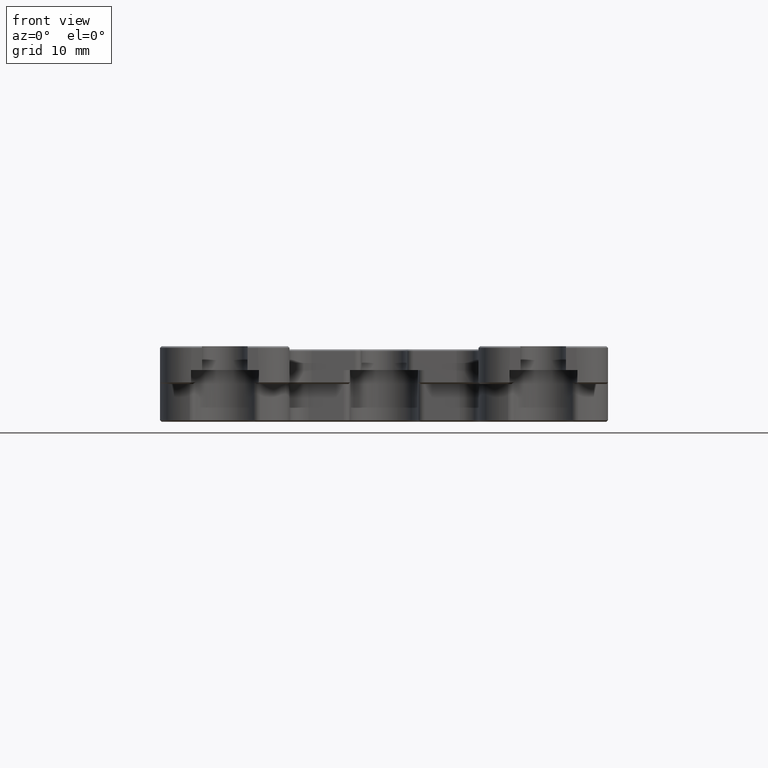
[diagram: clean part render]
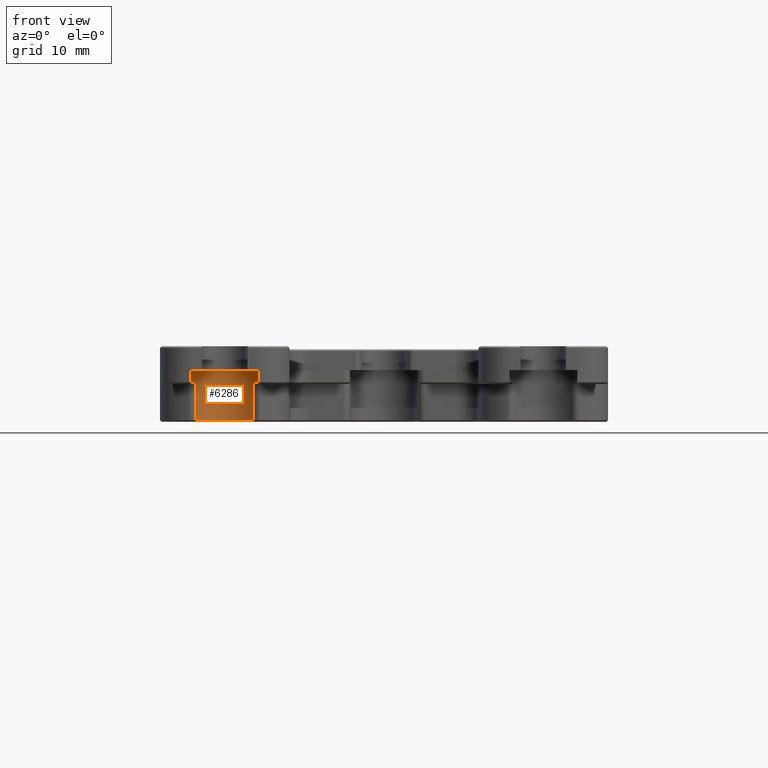
[diagram: same view with one face highlighted and labeled with its STEP entity id]
A machine part, front view. The second image highlights one B-rep face of the part: STEP entity #6286.
In plain terms, the highlighted cylindrical surface (edge-blend (fillet) strip) has radius 5.4 mm, axis along (-0, -0, -1).
Its self-contained STEP definition (entity closure, byte-faithful):
#534 = DIRECTION ( 'NONE',  ( -1.000000000000000000, 0.000000000000000000, 6.023345402697244253E-17 ) ) ;
#814 = VECTOR ( 'NONE', #22835, 1000.000000000000000 ) ;
#1021 = EDGE_CURVE ( 'NONE', #20765, #19115, #10416, .T. ) ;
#1199 = ORIENTED_EDGE ( 'NONE', *, *, #17718, .T. ) ;
#1258 = DIRECTION ( 'NONE',  ( -5.551115123125782702E-17, -1.224646799147352468E-16, -1.000000000000000000 ) ) ;
#1653 = EDGE_CURVE ( 'NONE', #2210, #13664, #15200, .T. ) ;
#1727 = DIRECTION ( 'NONE',  ( -5.551115123125782702E-17, -1.224646799147352468E-16, -1.000000000000000000 ) ) ;
#2127 = DIRECTION ( 'NONE',  ( -1.000000000000000000, 0.000000000000000000, 6.023345402697244253E-17 ) ) ;
#2210 = VERTEX_POINT ( 'NONE', #8356 ) ;
#2847 = ORIENTED_EDGE ( 'NONE', *, *, #1021, .T. ) ;
#3687 = CARTESIAN_POINT ( 'NONE',  ( -19.87500000000000000, -37.91000000000000369, 27.32679300785750698 ) ) ;
#3746 = CIRCLE ( 'NONE', #9104, 5.400000000000002132 ) ;
#4502 = FACE_OUTER_BOUND ( 'NONE', #28114, .T. ) ;
#4848 = CARTESIAN_POINT ( 'NONE',  ( -25.27500000000000568, -37.91000000000001080, 27.32679300785750698 ) ) ;
#5140 = DIRECTION ( 'NONE',  ( -1.000000000000000000, 0.000000000000000000, 0.000000000000000000 ) ) ;
#5851 = ORIENTED_EDGE ( 'NONE', *, *, #29060, .F. ) ;
#6286 = ADVANCED_FACE ( 'NONE', ( #4502 ), #26510, .F. ) ;
#6570 = DIRECTION ( 'NONE',  ( -5.551115123125782702E-17, -1.224646799147352468E-16, -1.000000000000000000 ) ) ;
#6685 = LINE ( 'NONE', #6789, #814 ) ;
#6789 = CARTESIAN_POINT ( 'NONE',  ( -20.70667780439379868, -35.03068891622810810, 27.32679300785750698 ) ) ;
#6860 = AXIS2_PLACEMENT_3D ( 'NONE', #7521, #9778, #25463 ) ;
#7521 = CARTESIAN_POINT ( 'NONE',  ( -25.27500000000000568, -37.91000000000001080, -5.749999999999999112 ) ) ;
#8356 = CARTESIAN_POINT ( 'NONE',  ( -20.70667780439379868, -35.03068891622810810, 0.2500000000000334177 ) ) ;
#9104 = AXIS2_PLACEMENT_3D ( 'NONE', #18233, #6570, #2127 ) ;
#9345 = CIRCLE ( 'NONE', #10223, 5.400000000000002132 ) ;
#9505 = VECTOR ( 'NONE', #11806, 1000.000000000000000 ) ;
#9673 = CARTESIAN_POINT ( 'NONE',  ( -19.87500000000000000, -37.91000000000000369, 0.2500000000000337508 ) ) ;
#9778 = DIRECTION ( 'NONE',  ( -5.551115123125782702E-17, -1.224646799147352468E-16, -1.000000000000000000 ) ) ;
#10223 = AXIS2_PLACEMENT_3D ( 'NONE', #14273, #20952, #14188 ) ;
#10416 = CIRCLE ( 'NONE', #6860, 5.400000000000002132 ) ;
#10455 = LINE ( 'NONE', #28134, #21369 ) ;
#11806 = DIRECTION ( 'NONE',  ( -5.551115123125782702E-17, -1.224646799147352468E-16, -1.000000000000000000 ) ) ;
#13054 = EDGE_CURVE ( 'NONE', #16482, #21386, #9345, .T. ) ;
#13613 = ORIENTED_EDGE ( 'NONE', *, *, #26202, .T. ) ;
#13664 = VERTEX_POINT ( 'NONE', #9673 ) ;
#14188 = DIRECTION ( 'NONE',  ( -1.000000000000000000, -1.284980352575412107E-15, 8.031127203596325671E-17 ) ) ;
#14273 = CARTESIAN_POINT ( 'NONE',  ( -25.27500000000000568, -37.91000000000001080, 2.200000000000006839 ) ) ;
#15172 = ORIENTED_EDGE ( 'NONE', *, *, #25343, .T. ) ;
#15200 = CIRCLE ( 'NONE', #22961, 5.400000000000002132 ) ;
#15460 = VERTEX_POINT ( 'NONE', #18542 ) ;
#16482 = VERTEX_POINT ( 'NONE', #21775 ) ;
#16540 = LINE ( 'NONE', #3687, #21071 ) ;
#17035 = VERTEX_POINT ( 'NONE', #28172 ) ;
#17718 = EDGE_CURVE ( 'NONE', #15460, #17035, #3746, .T. ) ;
#18233 = CARTESIAN_POINT ( 'NONE',  ( -25.27500000000000568, -37.91000000000001080, 0.2500000000000062728 ) ) ;
#18362 = LINE ( 'NONE', #18481, #9505 ) ;
#18481 = CARTESIAN_POINT ( 'NONE',  ( -29.84332219560620914, -35.03068891622810810, 27.32679300785750698 ) ) ;
#18542 = CARTESIAN_POINT ( 'NONE',  ( -30.67500000000000782, -37.91000000000000369, 0.2500000000000065503 ) ) ;
#18974 = EDGE_CURVE ( 'NONE', #19115, #2210, #6685, .T. ) ;
#19115 = VERTEX_POINT ( 'NONE', #25412 ) ;
#20433 = CARTESIAN_POINT ( 'NONE',  ( -25.27500000000000568, -37.91000000000001080, 0.2500000000000340283 ) ) ;
#20582 = DIRECTION ( 'NONE',  ( -5.551115123125782702E-17, -1.224646799147352468E-16, -1.000000000000000000 ) ) ;
#20765 = VERTEX_POINT ( 'NONE', #27015 ) ;
#20952 = DIRECTION ( 'NONE',  ( 5.551115123125782702E-17, 1.224646799147352468E-16, 1.000000000000000000 ) ) ;
#21071 = VECTOR ( 'NONE', #1258, 1000.000000000000000 ) ;
#21369 = VECTOR ( 'NONE', #1727, 1000.000000000000000 ) ;
#21386 = VERTEX_POINT ( 'NONE', #25288 ) ;
#21433 = ORIENTED_EDGE ( 'NONE', *, *, #1653, .T. ) ;
#21775 = CARTESIAN_POINT ( 'NONE',  ( -19.87500000000000000, -37.91000000000000369, 2.200000000000006395 ) ) ;
#22835 = DIRECTION ( 'NONE',  ( 5.551115123125782702E-17, 1.224646799147352468E-16, 1.000000000000000000 ) ) ;
#22961 = AXIS2_PLACEMENT_3D ( 'NONE', #20433, #25157, #534 ) ;
#23032 = ORIENTED_EDGE ( 'NONE', *, *, #13054, .T. ) ;
#24624 = ORIENTED_EDGE ( 'NONE', *, *, #18974, .T. ) ;
#24940 = AXIS2_PLACEMENT_3D ( 'NONE', #4848, #20582, #5140 ) ;
#25157 = DIRECTION ( 'NONE',  ( -5.551115123125782702E-17, -1.224646799147352468E-16, -1.000000000000000000 ) ) ;
#25288 = CARTESIAN_POINT ( 'NONE',  ( -30.67500000000000782, -37.91000000000000369, 2.200000000000007283 ) ) ;
#25343 = EDGE_CURVE ( 'NONE', #17035, #20765, #18362, .T. ) ;
#25412 = CARTESIAN_POINT ( 'NONE',  ( -20.70667780439379868, -35.03068891622810810, -5.750000000000000000 ) ) ;
#25463 = DIRECTION ( 'NONE',  ( -1.000000000000000000, 0.000000000000000000, 0.000000000000000000 ) ) ;
#26202 = EDGE_CURVE ( 'NONE', #21386, #15460, #10455, .T. ) ;
#26510 = CYLINDRICAL_SURFACE ( 'NONE', #24940, 5.400000000000002132 ) ;
#27015 = CARTESIAN_POINT ( 'NONE',  ( -29.84332219560620914, -35.03068891622810810, -5.749999999999999112 ) ) ;
#28114 = EDGE_LOOP ( 'NONE', ( #13613, #1199, #15172, #2847, #24624, #21433, #5851, #23032 ) ) ;
#28134 = CARTESIAN_POINT ( 'NONE',  ( -30.67500000000000782, -37.91000000000000369, 27.32679300785750698 ) ) ;
#28172 = CARTESIAN_POINT ( 'NONE',  ( -29.84332219560620914, -35.03068891622810810, 0.2500000000000061617 ) ) ;
#29060 = EDGE_CURVE ( 'NONE', #16482, #13664, #16540, .T. ) ;